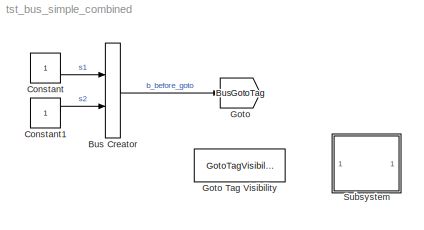
MODEL tst_bus_simple_combined
KIND model
BLOCK [BusCreator] Bus Creator
  DisplayOption = bar
  Inputs = 2
  Ports = [2, 1]
  SID = 1
BLOCK [Constant] Constant
  SID = 3
BLOCK [Constant] Constant1
  SID = 5
BLOCK [Goto] Goto
  GotoTag = BusGotoTag
  SID = 17
  TagVisibility = scoped
BLOCK [GotoTagVisibility] Goto Tag Visibility
  GotoTag = BusGotoTag
  SID = 20
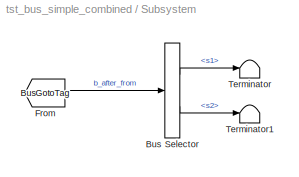
BLOCK [SubSystem] Subsystem
  FunctionWithSeparateData = off
  MaskHideContents = off
  MinAlgLoopOccurrences = off
  Opaque = off
  Ports = []
  PropExecContextOutsideSubsystem = off
  RTWSystemCode = Auto
  RequestExecContextInheritance = off
  SID = 19
BLOCK [BusSelector] Subsystem/Bus Selector
  OutputSignals = s1,s2
  Ports = [1, 2]
  SID = 2
BLOCK [From] Subsystem/From
  GotoTag = BusGotoTag
  SID = 18
BLOCK [Terminator] Subsystem/Terminator
  SID = 13
BLOCK [Terminator] Subsystem/Terminator1
  SID = 14
LINE Bus Creator:1 -> Goto:1
LINE Constant1:1 -> Bus Creator:2
LINE Constant:1 -> Bus Creator:1
LINE Subsystem/Bus Selector:1 -> Subsystem/Terminator:1
LINE Subsystem/Bus Selector:2 -> Subsystem/Terminator1:1
LINE Subsystem/From:1 -> Subsystem/Bus Selector:1
